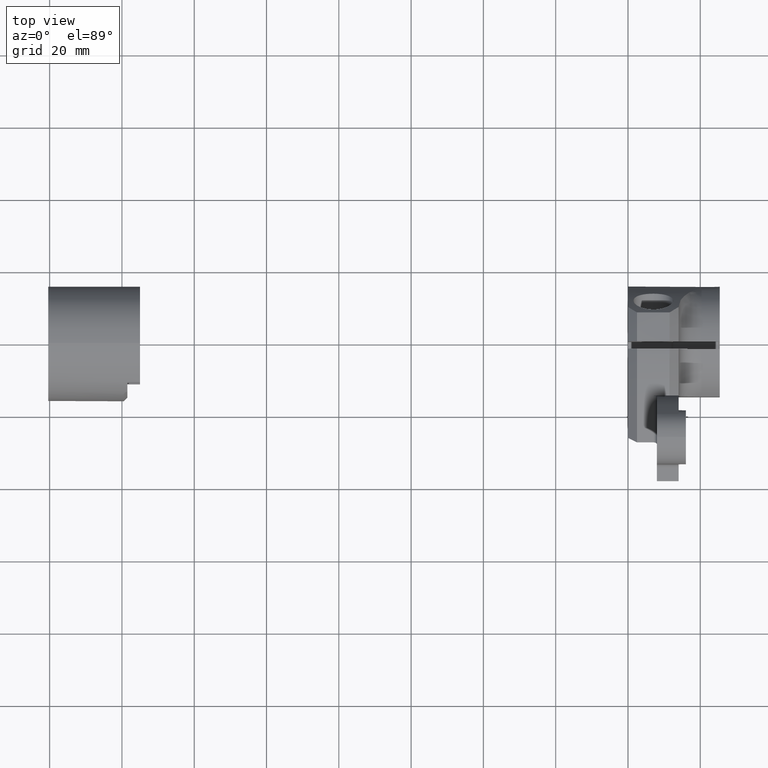
[diagram: clean part render]
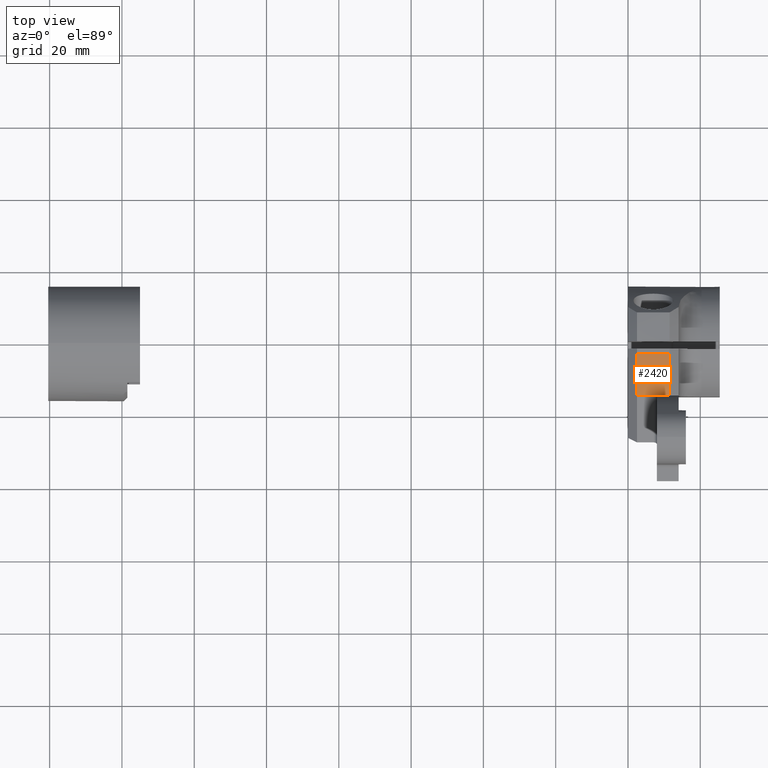
[diagram: same view with one face highlighted and labeled with its STEP entity id]
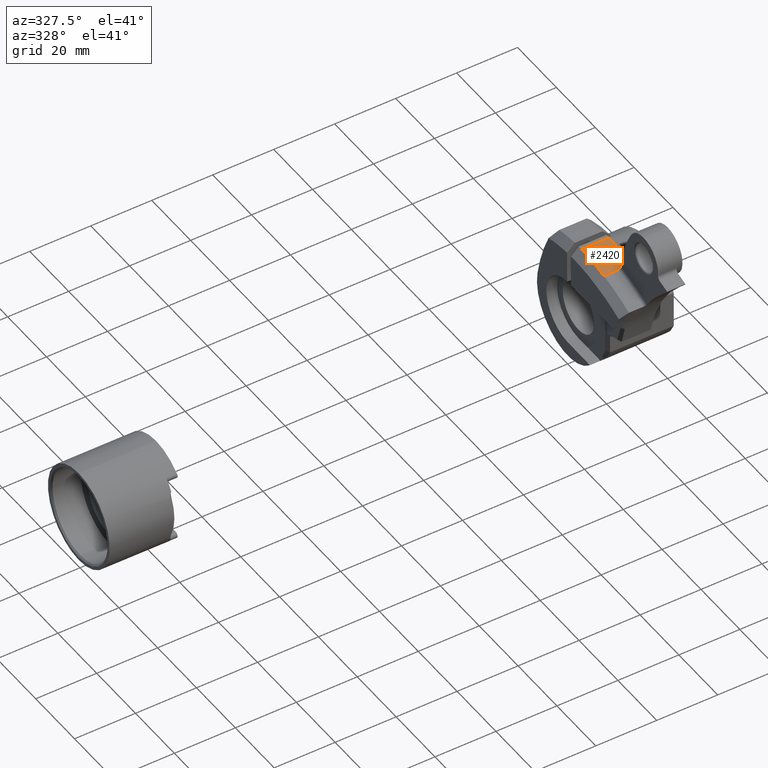
[diagram: same view with one face highlighted and labeled with its STEP entity id]
A machine part, top view. The second image highlights one B-rep face of the part: STEP entity #2420.
A second angle (auxiliary view) of the same face is appended — the face is thin or edge-on in the first view.
In plain terms, the highlighted cylindrical surface (partial cylindrical patch) has radius 52.7019 mm, axis along (-1, -0, -0).
Its self-contained STEP definition (entity closure, byte-faithful):
#39 = VECTOR ( 'NONE', #1139, 1000.000000000000000 ) ;
#122 = DIRECTION ( 'NONE',  ( -1.000000000000000000, 0.0000000000000000000, 0.0000000000000000000 ) ) ;
#195 = CARTESIAN_POINT ( 'NONE',  ( 11.50408915718728600, -3.209025219312067200, 24.21999941938782200 ) ) ;
#239 = AXIS2_PLACEMENT_3D ( 'NONE', #1108, #3430, #1436 ) ;
#368 = CARTESIAN_POINT ( 'NONE',  ( 11.49999999999997500, -14.70000000000000300, 22.94999999999999900 ) ) ;
#480 = CARTESIAN_POINT ( 'NONE',  ( 11.49999999999997700, -4.912755195916093800, 24.19216130982268400 ) ) ;
#487 = LINE ( 'NONE', #718, #3017 ) ;
#510 = CARTESIAN_POINT ( 'NONE',  ( 11.50412741574644700, -3.199998594123760300, 24.22000059782585200 ) ) ;
#718 = CARTESIAN_POINT ( 'NONE',  ( 25.39999999999999900, -14.70000000000000300, 22.94999999999999900 ) ) ;
#735 = ORIENTED_EDGE ( 'NONE', *, *, #2487, .T. ) ;
#797 = CARTESIAN_POINT ( 'NONE',  ( 11.50412741574644700, -3.199998594123760300, 24.22000059782585200 ) ) ;
#805 = CARTESIAN_POINT ( 'NONE',  ( 25.39999999999999900, -3.200000000000003300, 24.21999999999999900 ) ) ;
#806 = CYLINDRICAL_SURFACE ( 'NONE', #1089, 52.70192913385830700 ) ;
#839 = CARTESIAN_POINT ( 'NONE',  ( 11.50141664420254500, -3.957817380720942200, 24.21474750332880200 ) ) ;
#886 = VERTEX_POINT ( 'NONE', #1086 ) ;
#891 = ORIENTED_EDGE ( 'NONE', *, *, #1948, .T. ) ;
#988 = DIRECTION ( 'NONE',  ( 0.0000000000000000000, 0.0000000000000000000, 1.000000000000000000 ) ) ;
#1017 = LINE ( 'NONE', #805, #39 ) ;
#1040 = VERTEX_POINT ( 'NONE', #368 ) ;
#1052 = CIRCLE ( 'NONE', #239, 52.70192913385831400 ) ;
#1086 = CARTESIAN_POINT ( 'NONE',  ( 2.500000000000002200, -14.70000000000000300, 22.94999999999999900 ) ) ;
#1088 = ORIENTED_EDGE ( 'NONE', *, *, #1872, .F. ) ;
#1089 = AXIS2_PLACEMENT_3D ( 'NONE', #3283, #1662, #988 ) ;
#1108 = CARTESIAN_POINT ( 'NONE',  ( 2.500000000000002200, -3.200000000000003300, -28.48192913385830800 ) ) ;
#1139 = DIRECTION ( 'NONE',  ( -1.000000000000000000, -0.0000000000000000000, -0.0000000000000000000 ) ) ;
#1174 = CARTESIAN_POINT ( 'NONE',  ( 11.50305023290879300, -3.465265438508162700, 24.21943468546336200 ) ) ;
#1222 = AXIS2_PLACEMENT_3D ( 'NONE', #2100, #122, #2438 ) ;
#1224 = EDGE_LOOP ( 'NONE', ( #4229, #735, #891, #1088, #2146 ) ) ;
#1436 = DIRECTION ( 'NONE',  ( 0.0000000000000000000, 0.0000000000000000000, -1.000000000000000000 ) ) ;
#1502 = CARTESIAN_POINT ( 'NONE',  ( 11.50376203237999700, -3.287400149189329700, 24.21993126740699500 ) ) ;
#1510 = CARTESIAN_POINT ( 'NONE',  ( 2.500000000000002200, -3.200000000000003300, 24.21999999999999900 ) ) ;
#1662 = DIRECTION ( 'NONE',  ( -1.000000000000000000, -0.0000000000000000000, -0.0000000000000000000 ) ) ;
#1727 = DIRECTION ( 'NONE',  ( -1.000000000000000000, -0.0000000000000000000, -0.0000000000000000000 ) ) ;
#1840 = CARTESIAN_POINT ( 'NONE',  ( 11.50393831427023600, -3.244899380612962200, 24.21998162489251900 ) ) ;
#1872 = EDGE_CURVE ( 'NONE', #1040, #886, #487, .T. ) ;
#1948 = EDGE_CURVE ( 'NONE', #3444, #886, #1052, .T. ) ;
#2067 = CIRCLE ( 'NONE', #1222, 52.70192913385831400 ) ;
#2100 = CARTESIAN_POINT ( 'NONE',  ( 11.49999999999997500, -3.200000000000003300, -28.48192913385830800 ) ) ;
#2146 = ORIENTED_EDGE ( 'NONE', *, *, #2727, .T. ) ;
#2169 = CARTESIAN_POINT ( 'NONE',  ( 11.50405113258074000, -3.218026512270086000, 24.21999710922031600 ) ) ;
#2316 = CARTESIAN_POINT ( 'NONE',  ( 11.49999999999997700, -4.912755195916093800, 24.19216130982268400 ) ) ;
#2420 = ADVANCED_FACE ( 'NONE', ( #3459 ), #806, .T. ) ;
#2438 = DIRECTION ( 'NONE',  ( 0.0000000000000000000, 0.0000000000000000000, -1.000000000000000000 ) ) ;
#2487 = EDGE_CURVE ( 'NONE', #3130, #3444, #1017, .T. ) ;
#2508 = CARTESIAN_POINT ( 'NONE',  ( 11.50411557903589000, -3.202790108206004800, 24.22000000007445000 ) ) ;
#2545 = VERTEX_POINT ( 'NONE', #2316 ) ;
#2727 = EDGE_CURVE ( 'NONE', #1040, #2545, #2067, .T. ) ;
#2817 = CARTESIAN_POINT ( 'NONE',  ( 11.50001502003176900, -4.659571703407039900, 24.20039384575567400 ) ) ;
#2830 = CARTESIAN_POINT ( 'NONE',  ( 11.50037105858638300, -4.389184664352349300, 24.20736674007169500 ) ) ;
#2862 = EDGE_CURVE ( 'NONE', #2545, #3130, #4000, .T. ) ;
#3017 = VECTOR ( 'NONE', #1727, 1000.000000000000000 ) ;
#3130 = VERTEX_POINT ( 'NONE', #797 ) ;
#3150 = CARTESIAN_POINT ( 'NONE',  ( 11.50206731895669100, -3.735687551216722900, 24.21766588209912300 ) ) ;
#3283 = CARTESIAN_POINT ( 'NONE',  ( 25.39999999999999900, -3.200000000000003300, -28.48192913385830800 ) ) ;
#3430 = DIRECTION ( 'NONE',  ( 1.000000000000000000, -0.0000000000000000000, -0.0000000000000000000 ) ) ;
#3444 = VERTEX_POINT ( 'NONE', #1510 ) ;
#3459 = FACE_OUTER_BOUND ( 'NONE', #1224, .T. ) ;
#3499 = CARTESIAN_POINT ( 'NONE',  ( 11.50351943747517700, -3.346956661154511200, 24.21981006525364700 ) ) ;
#3828 = CARTESIAN_POINT ( 'NONE',  ( 11.50382725367252200, -3.271588829648001400, 24.21995438143612100 ) ) ;
#4000 = B_SPLINE_CURVE_WITH_KNOTS ( 'NONE', 3,
 ( #480, #2817, #2830, #839, #3150, #1174, #3499, #1502, #3828, #1840, #4164, #2169, #195, #2508, #510 ),
 .UNSPECIFIED., .F., .F.,
 ( 4, 2, 1, 1, 2, 2, 1, 2, 4 ),
 ( 0.0000000000000000000, 0.2660373362050351100, 0.3990560043075526700, 0.4655653383588112500, 0.4988200053844406600, 0.5154473388972554700, 0.5237610056536626800, 0.5279178390318662900, 0.5320746724100698900 ),
 .UNSPECIFIED. ) ;
#4164 = CARTESIAN_POINT ( 'NONE',  ( 11.50399434677275000, -3.231502249862920900, 24.21999192112634300 ) ) ;
#4229 = ORIENTED_EDGE ( 'NONE', *, *, #2862, .T. ) ;